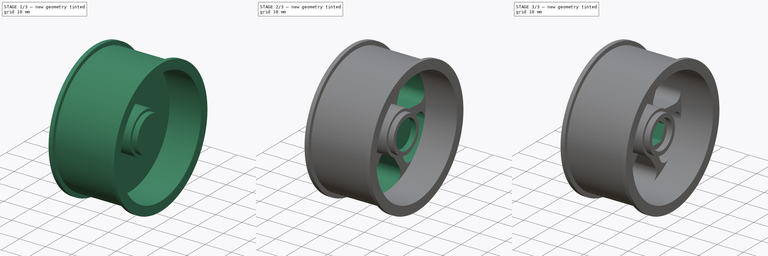
[diagram: build sequence overview — one tinted view per stage of 3, left to right]
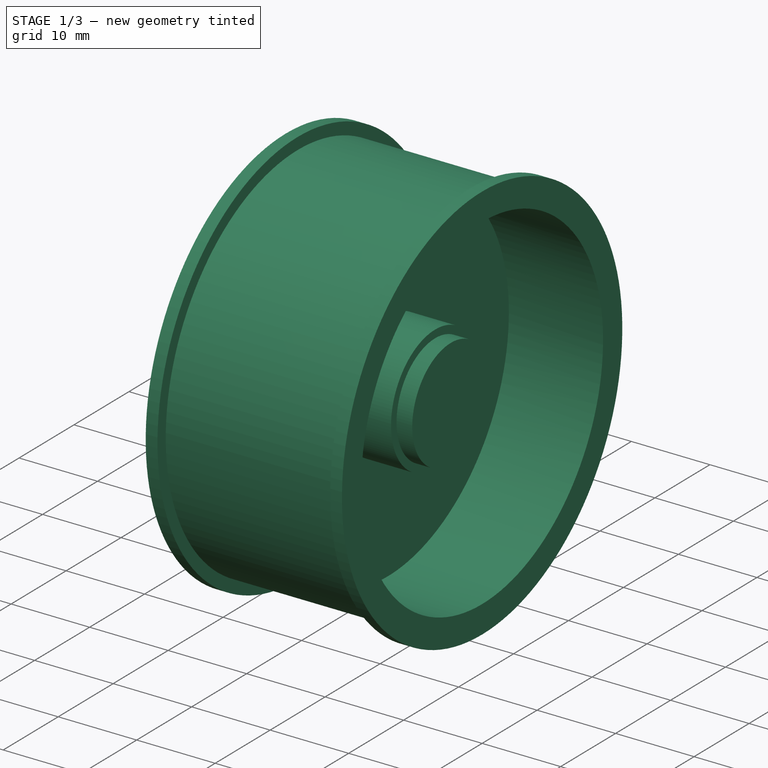
[diagram: stage 1 of 3 — iso view after this stage's code; geometry added in this stage tinted green]
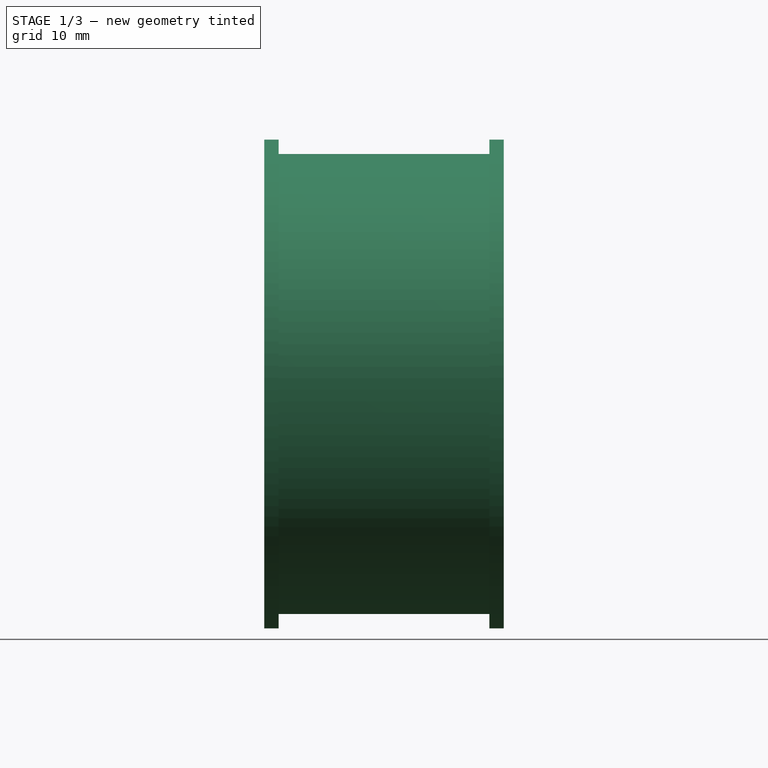
[diagram: stage 1 of 3 — front view after this stage's code; geometry added in this stage tinted green]
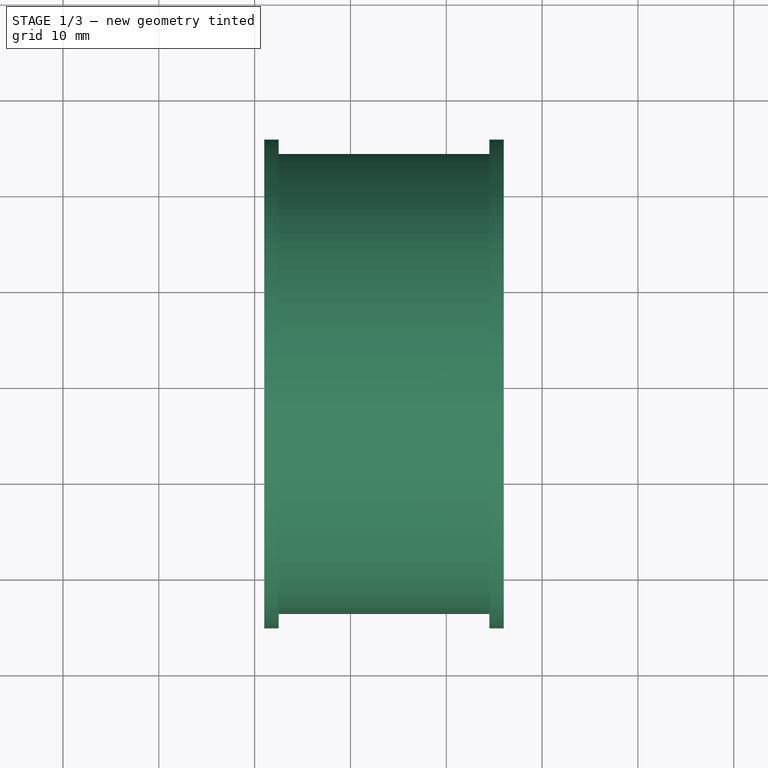
[diagram: stage 1 of 3 — top view after this stage's code; geometry added in this stage tinted green]
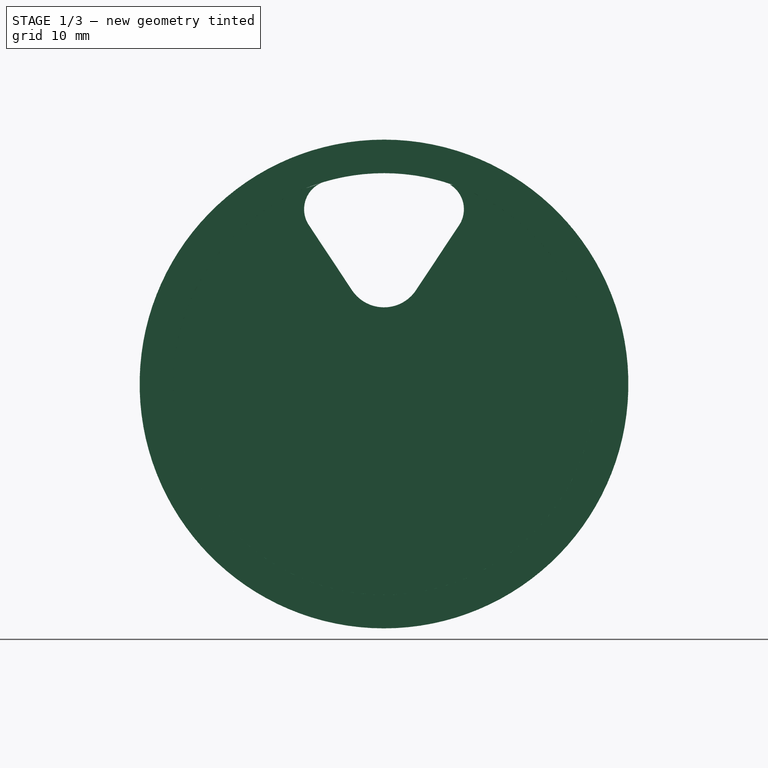
[diagram: stage 1 of 3 — right view after this stage's code; geometry added in this stage tinted green]
FCSTD DOCUMENT  (FreeCAD 2023.131R26244 +5365 (Git))
Label: wheel
License: All rights reserved
LicenseURL: http://en.wikipedia.org/wiki/All_rights_reserved
objects: Sketcher::SketchObject×5, PartDesign::Pocket×4, PartDesign::Revolution×1, PartDesign::PolarPattern×1, PartDesign::Body×1
note: 29 computed .brp shape members not serialized (recipe doc carries the construction recipe); baked Part::Feature solids carry a one-line shape summary decoded from their .brp

FEATURE [Sketcher::SketchObject] Sketch
  ArcFitTolerance = 1e-06
  AttachmentSupport = -> [XZ_Plane]
  ExternalBSplineMaxDegree = 5
  ExternalBSplineTolerance = 0.0001
  FixShape = 1
  FullyConstrained = true
  InternalTolerance = 1e-06
  InvalidShape = false
  MakeInternals = false
  MapMode = 5
  Placement = pos=(0,0,0) rot=(1,0,0;1.5708rad)
  Support = -> [XZ_Plane]
  TreeRank = 11
  ValidateShape = false
  sketch-geometry (17):
    g0: LineSegment StartX=-19 StartY=25.5 StartZ=0 EndX=-17.5 EndY=25.5 EndZ=0
    g1: LineSegment StartX=-17.5 StartY=25.5 StartZ=0 EndX=-17.5 EndY=24 EndZ=0
    g2: LineSegment StartX=-17.5 StartY=24 StartZ=0 EndX=4.5 EndY=24 EndZ=0
    g3: LineSegment StartX=4.5 StartY=24 StartZ=0 EndX=4.5 EndY=25.5 EndZ=0
    g4: LineSegment StartX=4.5 StartY=25.5 StartZ=0 EndX=6 EndY=25.5 EndZ=0
    g5: LineSegment StartX=6 StartY=25.5 StartZ=0 EndX=6 EndY=22 EndZ=0
    g6: LineSegment StartX=6 StartY=22 StartZ=0 EndX=-6 EndY=22 EndZ=0
    g7: LineSegment StartX=-6 StartY=22 StartZ=0 EndX=-6 EndY=8 EndZ=0
    g8: LineSegment StartX=-6 StartY=8 StartZ=0 EndX=0 EndY=8 EndZ=0
    g9: LineSegment StartX=-19 StartY=25.5 StartZ=0 EndX=-19 EndY=22 EndZ=0
    g10: LineSegment StartX=-19 StartY=22 StartZ=0 EndX=-8 EndY=8 EndZ=0
    g11: LineSegment StartX=-8 StartY=8 StartZ=0 EndX=-8 EndY=0 EndZ=0
    g12: LineSegment StartX=-8 StartY=0 StartZ=0 EndX=0 EndY=0 EndZ=0
    g13: LineSegment StartX=0 StartY=8 StartZ=0 EndX=0 EndY=7 EndZ=0
    g14: LineSegment StartX=0 StartY=7 StartZ=0 EndX=2 EndY=7 EndZ=0
    g15: LineSegment StartX=2 StartY=7 StartZ=0 EndX=2 EndY=0 EndZ=0
    g16: LineSegment StartX=0 StartY=0 StartZ=0 EndX=2 EndY=0 EndZ=0
  constraints (50):
    c: Coincident(g1,g0)
    c: Coincident(g2,g1)
    c: Horizontal(g2)
    c: Coincident(g3,g2)
    c: Coincident(g4,g3)
    c: Horizontal(g4)
    c: Coincident(g5,g4)
    c: Vertical(g5)
    c: Coincident(g6,g5)
    c: Horizontal(g6)
    c: Coincident(g7,g6)
    c: Vertical(g7)
    c: Coincident(g8,g7)
    c: Horizontal(g8)
    c: Coincident(g9,g0)
    c: Vertical(g9)
    c: Coincident(g10,g9)
    c: Coincident(g11,g10)
    c: Vertical(g11)
    c: Coincident(g12,g11)
    c: Coincident(g12,g-1)
    c: Horizontal(g0)
    c: Vertical(g1)
    c: Vertical(g3)
    c: Equal(g3,g1)
    c: Equal(g0,g4)
    c: Horizontal(g9,g6)
    c: Horizontal(g12)
    c: DistanceY(g12,g4) = 25.5
    c: DistanceX(g0,g4) = 25
    c: DistanceY(g12,g8) = 8
    c: DistanceY(g5,g2) = 2
    c: Horizontal(g10,g7)
    c: DistanceX(g12,g12) = 8
    c: Coincident(g13,g8)
    c: Coincident(g14,g13)
    c: Coincident(g15,g14)
    c: PointOnObject(g15,g-1)
    c: Coincident(g16,g12)
    c: Coincident(g16,g15)
    c: Vertical(g15)
    c: Horizontal(g14)
    c: Vertical(g13)
    c: PointOnObject(g8,g-2)
    c: DistanceY(g15,g15) = 7
    c: DistanceX(g14,g14) = 2
    c: DistanceX(g10,g7) = 2
    c: DistanceX(g15,g5) = 4
    c: DistanceX(g0,g3) = 22
    c: DistanceY(g3,g3) = 1.5
FEATURE [PartDesign::Revolution] Revolution
  AddSubType = 0
  Angle = 360
  Axis = (1,0,0)
  Base = (0,0,0)
  ClaimChildren = false
  Fit = 0
  FitJoin = 0
  FixShape = 1
  InnerFit = 0
  InnerFitJoin = 0
  InvalidShape = false
  Linearize = true
  NewSolid = false
  Profile = -> Sketch
  ReferenceAxis = -> X_Axis
  Refine = true
  Suppress = false
  TreeRank = 12
  ValidateShape = false
  _ProfileBasedVersion = 1
FEATURE [Sketcher::SketchObject] Sketch001
  ArcFitTolerance = 1e-06
  AttachmentSupport = -> [YZ_Plane]
  ExternalBSplineMaxDegree = 5
  ExternalBSplineTolerance = 0.0001
  ExternalGeometry = -> [Revolution]
  FixShape = 1
  FullyConstrained = true
  InternalTolerance = 1e-06
  InvalidShape = false
  MakeInternals = false
  MapMode = 5
  Placement = pos=(0,0,0) rot=(0.57735,0.57735,0.57735;2.0944rad)
  Support = -> [YZ_Plane]
  TreeRank = 13
  ValidateShape = false
  sketch-geometry (8):
    g0: ArcOfCircle CenterX=0 CenterY=12.0152 CenterZ=0 NormalX=0 NormalY=0 NormalZ=1 AngleXU=0 Radius=4.01519 StartAngle=3.72671 EndAngle=5.69807
    g1: ArcOfCircle CenterX=-5.3382 CenterY=18.2347 CenterZ=0 NormalX=0 NormalY=0 NormalZ=1 AngleXU=0 Radius=3 StartAngle=1.85559 EndAngle=3.72671
    g2: ArcOfCircle CenterX=5.3382 CenterY=18.2347 CenterZ=0 NormalX=0 NormalY=0 NormalZ=1 AngleXU=0 Radius=3 StartAngle=5.69807 EndAngle=7.56919
    g3: ArcOfCircle CenterX=4.7e-15 CenterY=-2.2e-15 CenterZ=0 NormalX=0 NormalY=0 NormalZ=1 AngleXU=0 Radius=22 StartAngle=1.286 EndAngle=1.85559
    g4: LineSegment StartX=-7.83915 StartY=16.5778 StartZ=0 EndX=-3.34726 EndY=9.79762 EndZ=0
    g5: LineSegment StartX=3.34726 StartY=9.79762 StartZ=0 EndX=7.83915 EndY=16.5778 EndZ=0
    g6: LineSegment [constr] StartX=1.3e-15 StartY=-1.7e-15 StartZ=0 EndX=11 EndY=19.0526 EndZ=0
    g7: LineSegment [constr] StartX=6.81136 StartY=7.79762 StartZ=0 EndX=10.4372 EndY=15.0778 EndZ=0
  constraints (20):
    c: Tangent(g3,g1) = -1.5708
    c: Tangent(g3,g2) = -1.5708
    c: Tangent(g5,g2) = -1.5708
    c: Tangent(g5,g0) = -1.5708
    c: Tangent(g4,g0) = -1.5708
    c: Tangent(g4,g1) = -1.5708
    c: Equal(g1,g2)
    c: Symmetric(g2,g1,g-2)
    c: PointOnObject(g0,g-2)
    c: Tangent(g0,g-3)
    c: Tangent(g3,g-4)
    c: Coincident(g6,g-4)
    c: Symmetric(g7,g2,g6)
    c: Symmetric(g0,g7,g6)
    c: Distance(g2,g7) = 3
    c: Distance(g0,g7) = 4
    c: Radius(g2) = 3
    c: Equal(g3,g-4)
    c: PointOnObject(g6,g-4)
    c: Angle(g6,g-2) = 0.523599
FEATURE [PartDesign::Pocket] Pocket
  AddSubType = 1
  AutoTaperInnerAngle = true
  BaseFeature = -> Revolution
  CheckUpToFaceLimits = true
  ClaimChildren = false
  Fit = 0
  FitJoin = 0
  FixShape = 1
  InnerFit = 0
  InnerFitJoin = 0
  InvalidShape = false
  Length = 5
  Length2 = 100
  Linearize = true
  NewSolid = false
  Profile = -> Sketch001
  Refine = true
  Suppress = false
  TaperInnerAngle = 0
  TaperInnerAngleRev = 0
  TreeRank = 14
  Type = 1
  ValidateShape = false
  _ProfileBasedVersion = 1
  _Version = 1
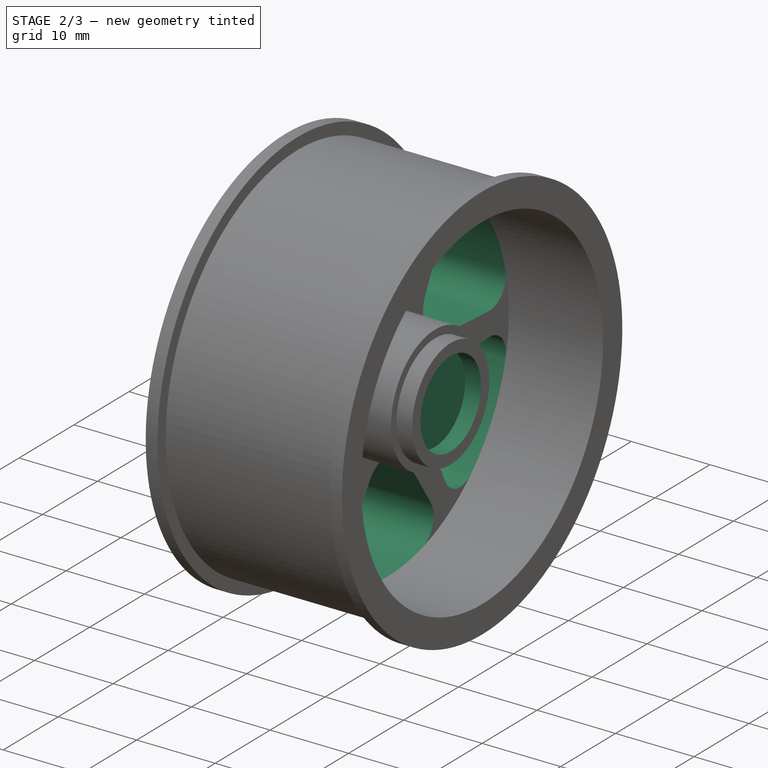
[diagram: stage 2 of 3 — iso view after this stage's code; geometry added in this stage tinted green]
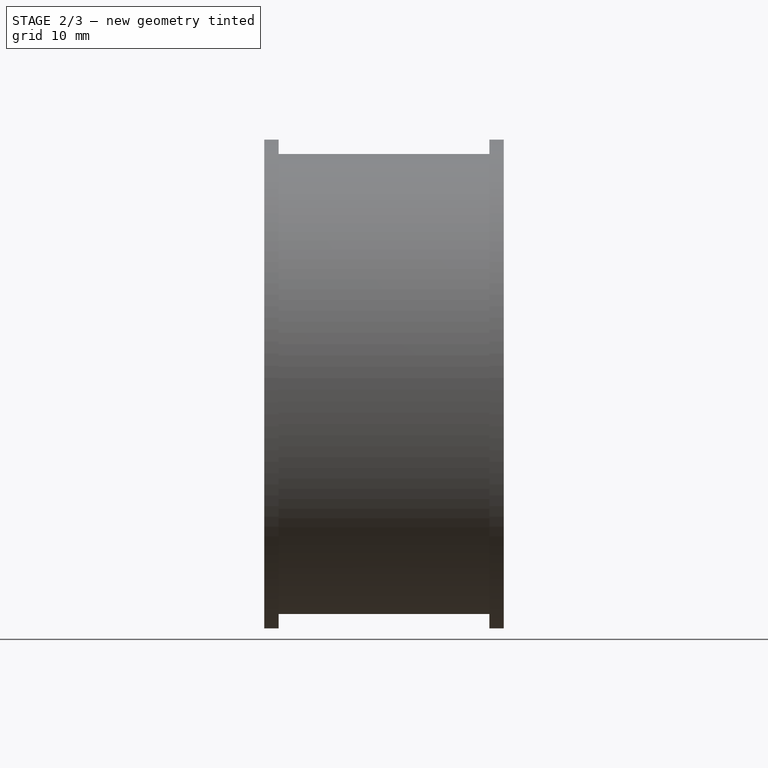
[diagram: stage 2 of 3 — front view after this stage's code; geometry added in this stage tinted green]
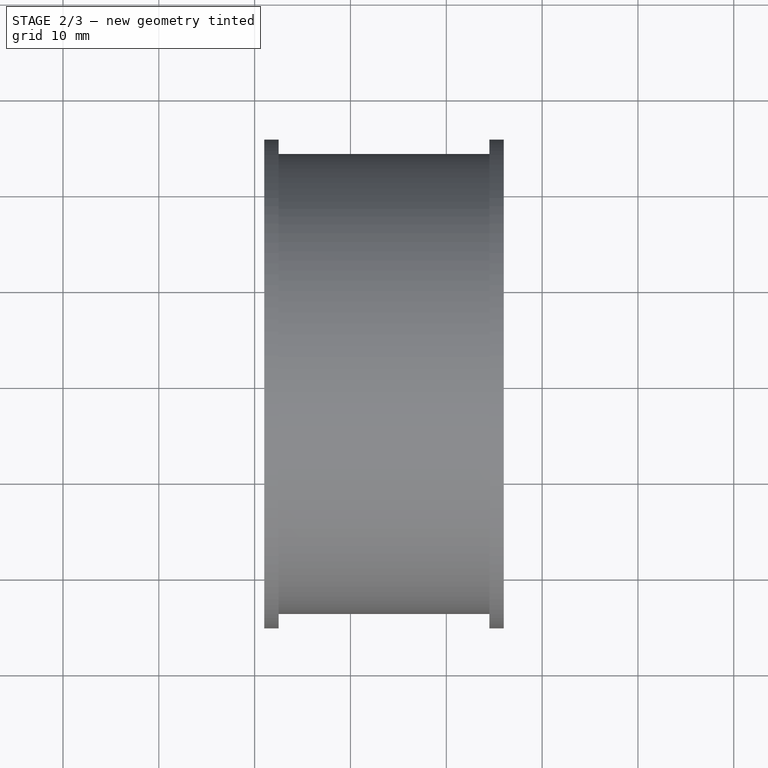
[diagram: stage 2 of 3 — top view after this stage's code; geometry added in this stage tinted green]
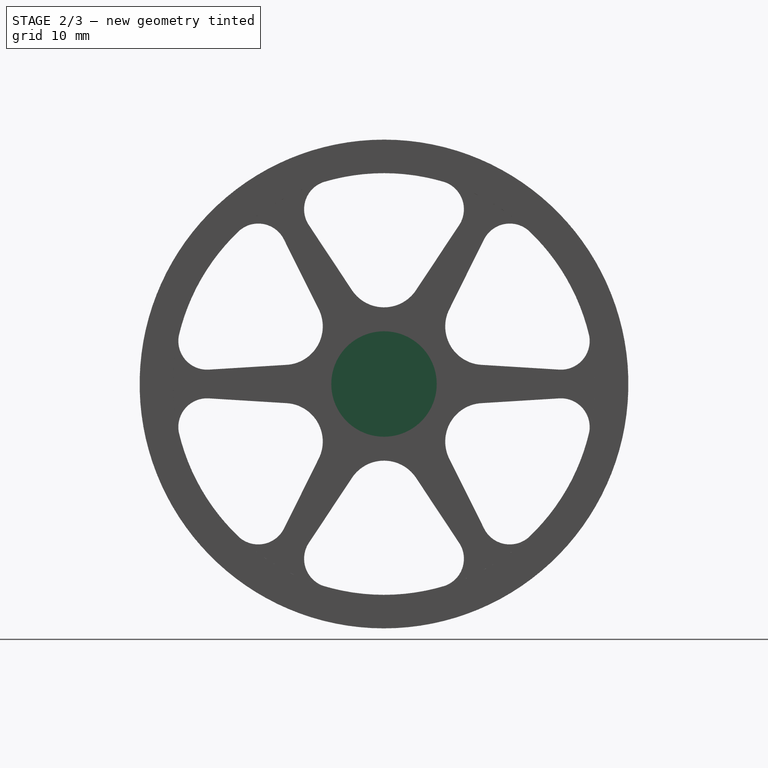
[diagram: stage 2 of 3 — right view after this stage's code; geometry added in this stage tinted green]
FEATURE [PartDesign::PolarPattern] PolarPattern
  AddSubType = 0
  Angle = 360
  Axis = -> Sketch001 [N_Axis]
  BaseFeature = -> Pocket
  CopyShape = false
  FixShape = 1
  InvalidShape = false
  NewSolid = false
  Occurrences = 6
  OriginalSubs = -> [Pocket]
  Originals = -> [Pocket]
  ParallelTransform = true
  Refine = true
  SubTransform = true
  Suppress = false
  TreeRank = 15
  ValidateShape = false
  _Version = 3
FEATURE [Sketcher::SketchObject] Sketch002
  ArcFitTolerance = 1e-06
  AttachmentSupport = -> [PolarPattern]
  ExternalBSplineMaxDegree = 5
  ExternalBSplineTolerance = 0.0001
  FixShape = 1
  FullyConstrained = true
  InternalTolerance = 1e-06
  InvalidShape = false
  MakeInternals = false
  MapMode = 5
  Placement = pos=(2,0,0) rot=(0.57735,0.57735,0.57735;2.0944rad)
  Support = -> [PolarPattern]
  TreeRank = 16
  ValidateShape = false
  sketch-geometry (1):
    g0: Circle CenterX=0 CenterY=0 CenterZ=0 NormalX=0 NormalY=0 NormalZ=1 AngleXU=0 Radius=5.5
  constraints (2):
    c: Coincident(g0,g-1)
    c: Diameter(g0) = 11
FEATURE [PartDesign::Pocket] Pocket001
  AddSubType = 1
  AutoTaperInnerAngle = true
  BaseFeature = -> PolarPattern
  CheckUpToFaceLimits = true
  ClaimChildren = false
  Fit = 0
  FitJoin = 0
  FixShape = 1
  InnerFit = 0
  InnerFitJoin = 0
  InvalidShape = false
  Length = 0
  Length2 = 100
  Linearize = true
  NewSolid = false
  Profile = -> Sketch002
  Refine = true
  Suppress = false
  TaperInnerAngle = 0
  TaperInnerAngleRev = 0
  TreeRank = 17
  Type = 3
  UpToFace = -> PolarPattern [Face71]
  ValidateShape = false
  _ProfileBasedVersion = 1
  _Version = 1
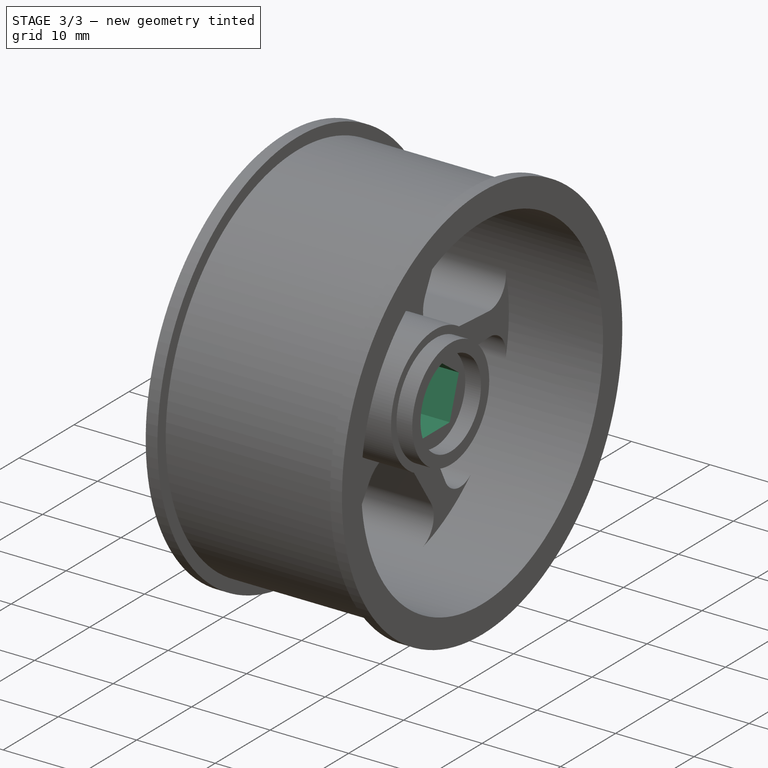
[diagram: stage 3 of 3 — iso view after this stage's code; geometry added in this stage tinted green]
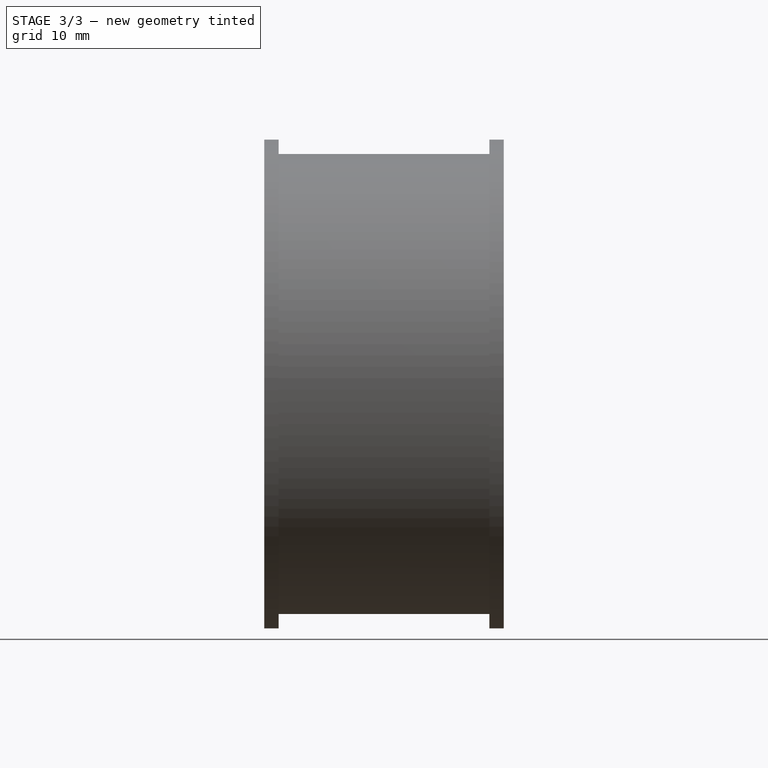
[diagram: stage 3 of 3 — front view after this stage's code; geometry added in this stage tinted green]
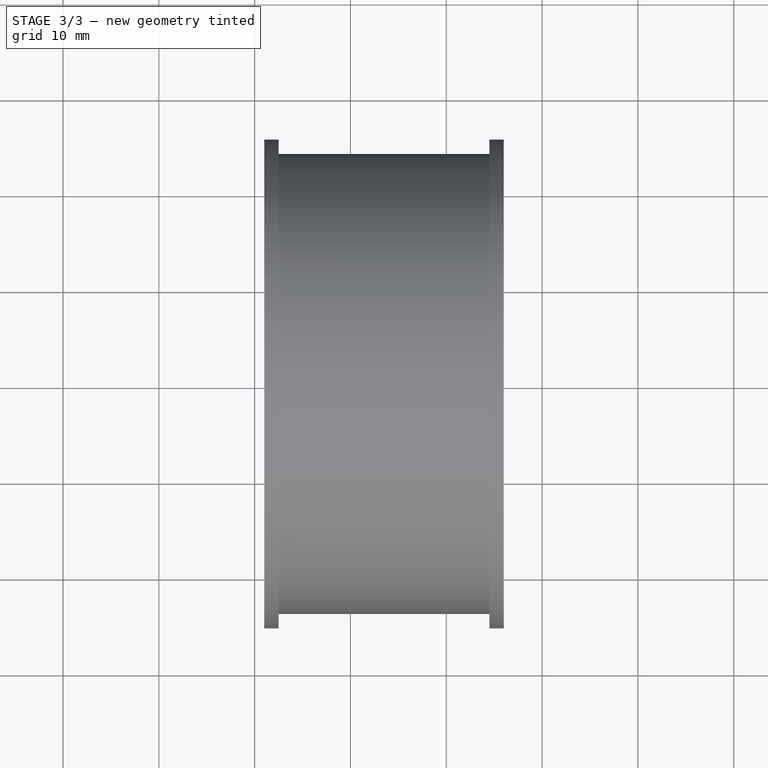
[diagram: stage 3 of 3 — top view after this stage's code; geometry added in this stage tinted green]
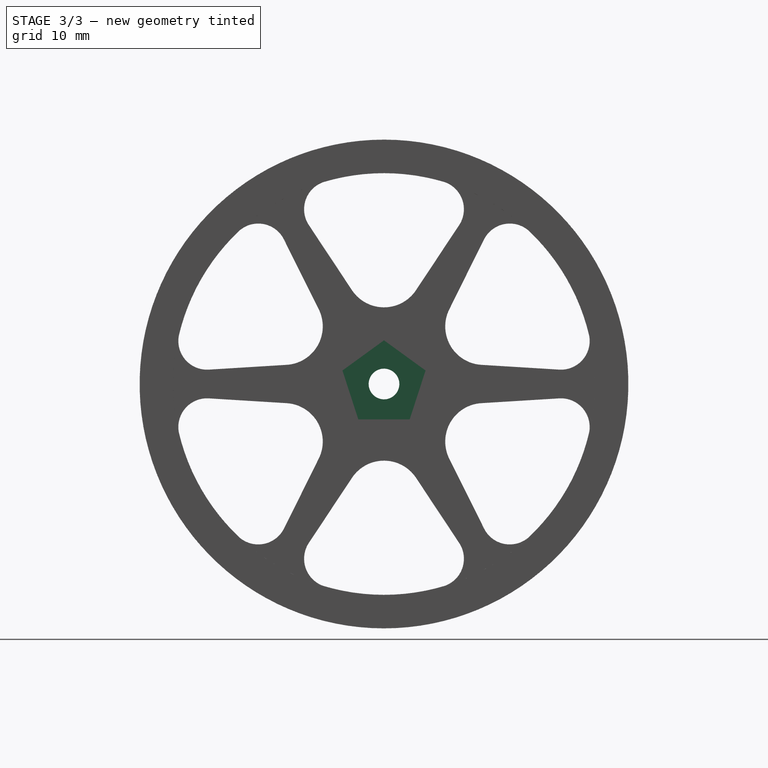
[diagram: stage 3 of 3 — right view after this stage's code; geometry added in this stage tinted green]
FEATURE [Sketcher::SketchObject] Sketch003
  ArcFitTolerance = 1e-06
  AttachmentSupport = -> [Pocket001]
  ExternalBSplineMaxDegree = 5
  ExternalBSplineTolerance = 0.0001
  FixShape = 1
  FullyConstrained = true
  InternalTolerance = 1e-06
  InvalidShape = false
  MakeInternals = false
  MapMode = 5
  Placement = pos=(0,0,0) rot=(0.57735,0.57735,0.57735;2.0944rad)
  Support = -> [Pocket001]
  TreeRank = 18
  ValidateShape = false
  sketch-geometry (6):
    g0: LineSegment StartX=0 StartY=4.56049 StartZ=0 EndX=-4.33728 EndY=1.40927 EndZ=0
    g1: LineSegment StartX=-4.33728 StartY=1.40927 StartZ=0 EndX=-2.68059 EndY=-3.68951 EndZ=0
    g2: LineSegment StartX=-2.68059 StartY=-3.68951 StartZ=0 EndX=2.68059 EndY=-3.68951 EndZ=0
    g3: LineSegment StartX=2.68059 StartY=-3.68951 StartZ=0 EndX=4.33728 EndY=1.40927 EndZ=0
    g4: LineSegment StartX=4.33728 StartY=1.40927 StartZ=0 EndX=0 EndY=4.56049 EndZ=0
    g5: Circle [constr] CenterX=0 CenterY=0 CenterZ=0 NormalX=0 NormalY=0 NormalZ=1 AngleXU=0 Radius=4.56049
  constraints (14):
    c: Coincident(g0,g1)
    c: Coincident(g1,g2)
    c: Coincident(g2,g3)
    c: Coincident(g3,g4)
    c: Coincident(g4,g0)
    c: Equal(g0, g1-g4) x4
    c: PointOnObject(g0,g5)
    c: PointOnObject(g1,g5)
    c: PointOnObject(g2,g5)
    c: PointOnObject(g3,g5)
    c: PointOnObject(g4,g5)
    c: Coincident(g5,g-1)
    c: PointOnObject(g4,g-2)
    c: DistanceY(g2,g0) = 8.25
FEATURE [PartDesign::Pocket] Pocket002
  AddSubType = 1
  AutoTaperInnerAngle = true
  BaseFeature = -> Pocket001
  CheckUpToFaceLimits = true
  ClaimChildren = false
  Fit = 0
  FitJoin = 0
  FixShape = 1
  InnerFit = 0
  InnerFitJoin = 0
  InvalidShape = false
  Length = 7
  Length2 = 100
  Linearize = true
  NewSolid = false
  Profile = -> Sketch003
  Refine = true
  Suppress = false
  TaperInnerAngle = 0
  TaperInnerAngleRev = 0
  TreeRank = 19
  Type = 0
  ValidateShape = false
  _ProfileBasedVersion = 1
  _Version = 1
FEATURE [Sketcher::SketchObject] Sketch004
  ArcFitTolerance = 1e-06
  AttachmentSupport = -> [Pocket002]
  ExternalBSplineMaxDegree = 5
  ExternalBSplineTolerance = 0.0001
  FixShape = 1
  FullyConstrained = true
  InternalTolerance = 1e-06
  InvalidShape = false
  MakeInternals = false
  MapMode = 5
  Placement = pos=(-7,0,0) rot=(0.57735,0.57735,0.57735;2.0944rad)
  Support = -> [Pocket002]
  TreeRank = 20
  ValidateShape = false
  sketch-geometry (1):
    g0: Circle CenterX=0 CenterY=0 CenterZ=0 NormalX=0 NormalY=0 NormalZ=1 AngleXU=0 Radius=1.6
  constraints (2):
    c: Coincident(g0,g-1)
    c: Diameter(g0) = 3.2
FEATURE [PartDesign::Pocket] Pocket003
  AddSubType = 1
  AutoTaperInnerAngle = true
  BaseFeature = -> Pocket002
  CheckUpToFaceLimits = true
  ClaimChildren = false
  Fit = 0
  FitJoin = 0
  FixShape = 1
  InnerFit = 0
  InnerFitJoin = 0
  InvalidShape = false
  Length = 5
  Length2 = 100
  Linearize = true
  NewSolid = false
  Profile = -> Sketch004
  Refine = true
  Suppress = false
  TaperInnerAngle = 0
  TaperInnerAngleRev = 0
  TreeRank = 21
  Type = 1
  ValidateShape = false
  _ProfileBasedVersion = 1
  _Version = 1
FEATURE [PartDesign::Body] Body  label="hub"
  AutoGroupSolids = false
  ClaimAllChildren = false
  ExportMode = 0
  FixShape = 1
  Group = -> [Sketch,Revolution,Sketch001,Pocket,PolarPattern,Sketch002,Pocket001,Sketch003,Pocket002,Sketch004,Pocket003]
  InvalidShape = false
  Origin = -> Origin
  Tip = -> Pocket003
  TreeRank = 10
  ValidateShape = false
  _ExportChildren = -> [Revolution,Pocket,PolarPattern,Pocket001,Pocket002,Pocket003]
  _GroupVersion = 1
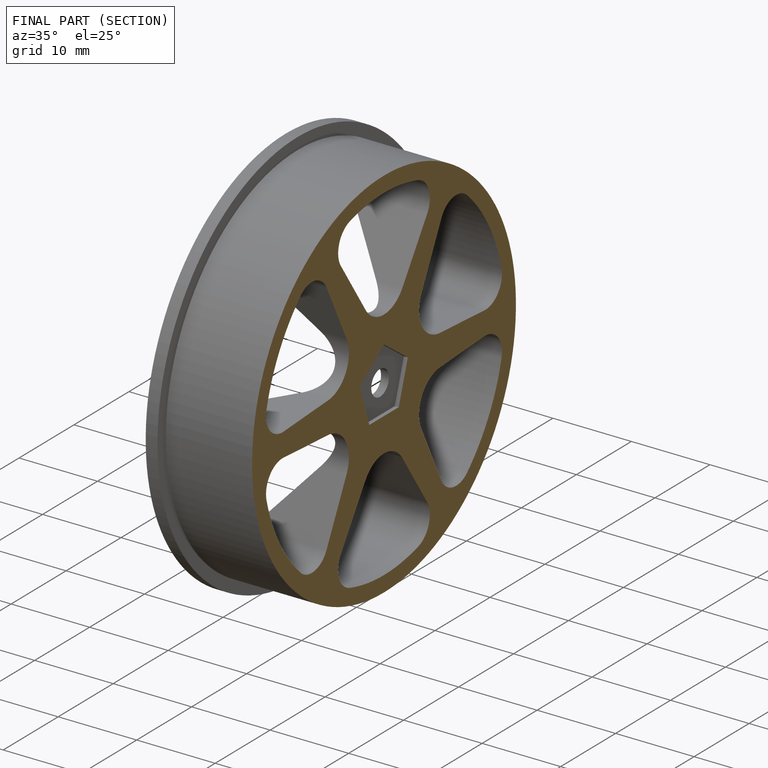
[diagram: finished part — half-section view (interior)]
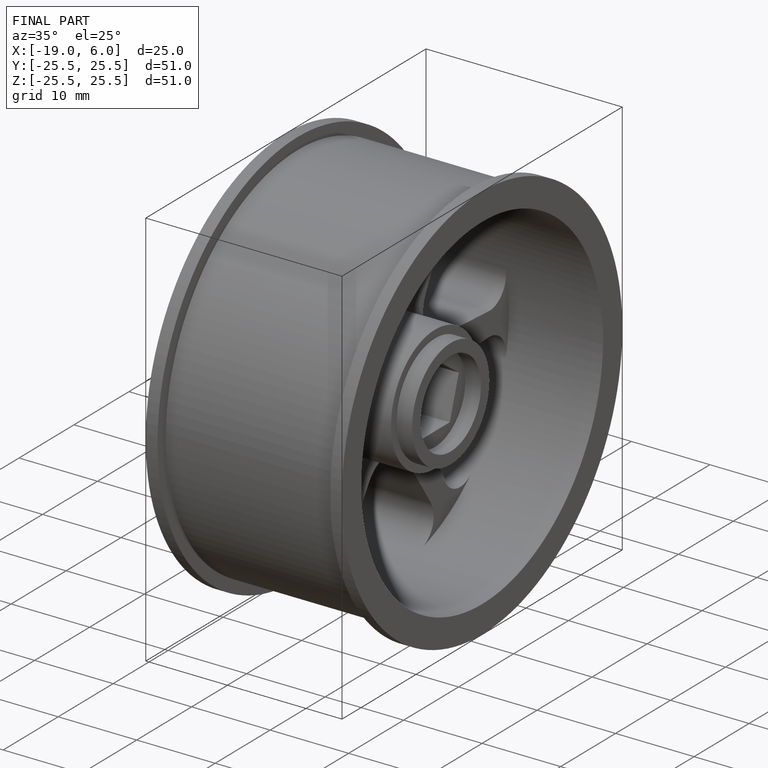
[diagram: finished part — iso view with bounding-box wireframe]
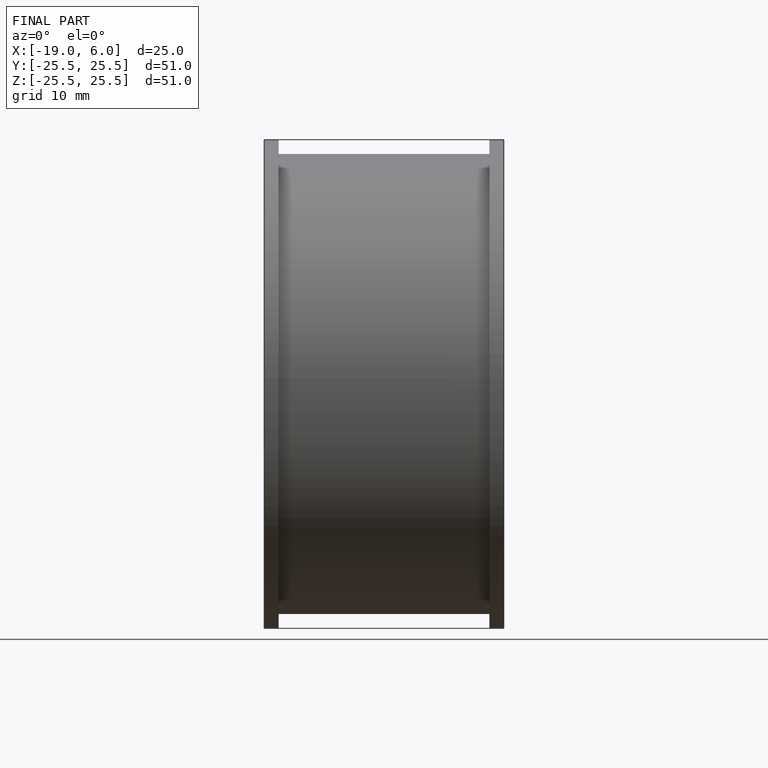
[diagram: finished part — front view with bounding-box wireframe]
